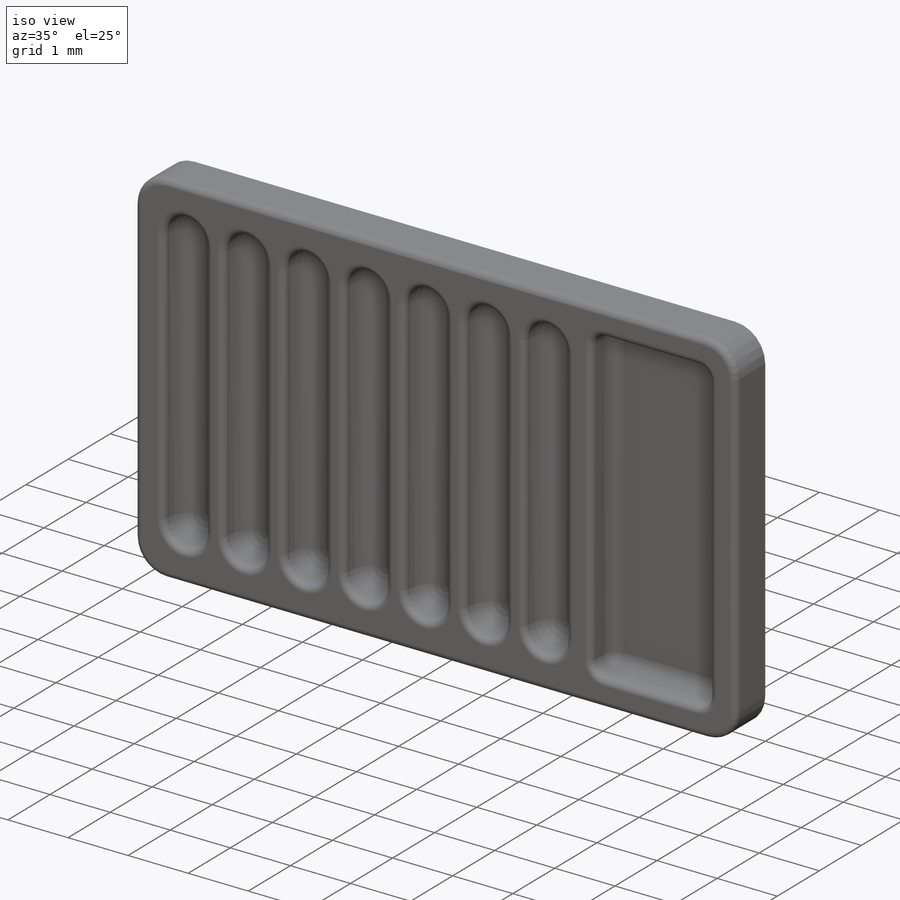
[diagram: iso view]
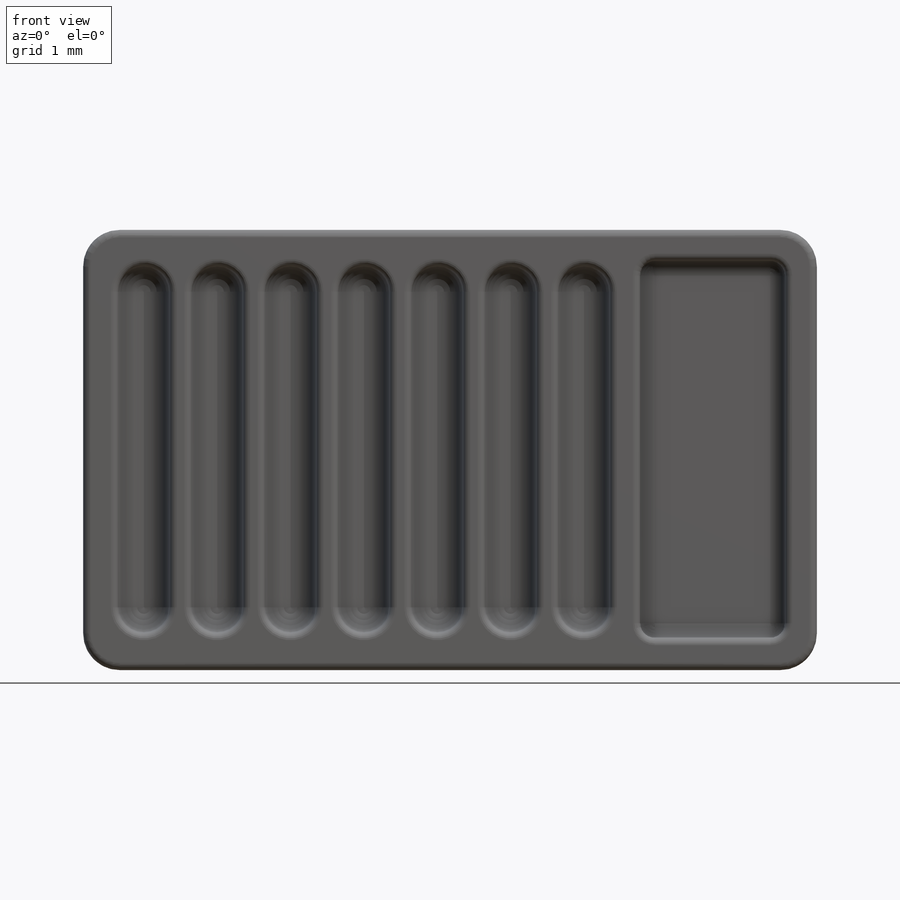
[diagram: front view]
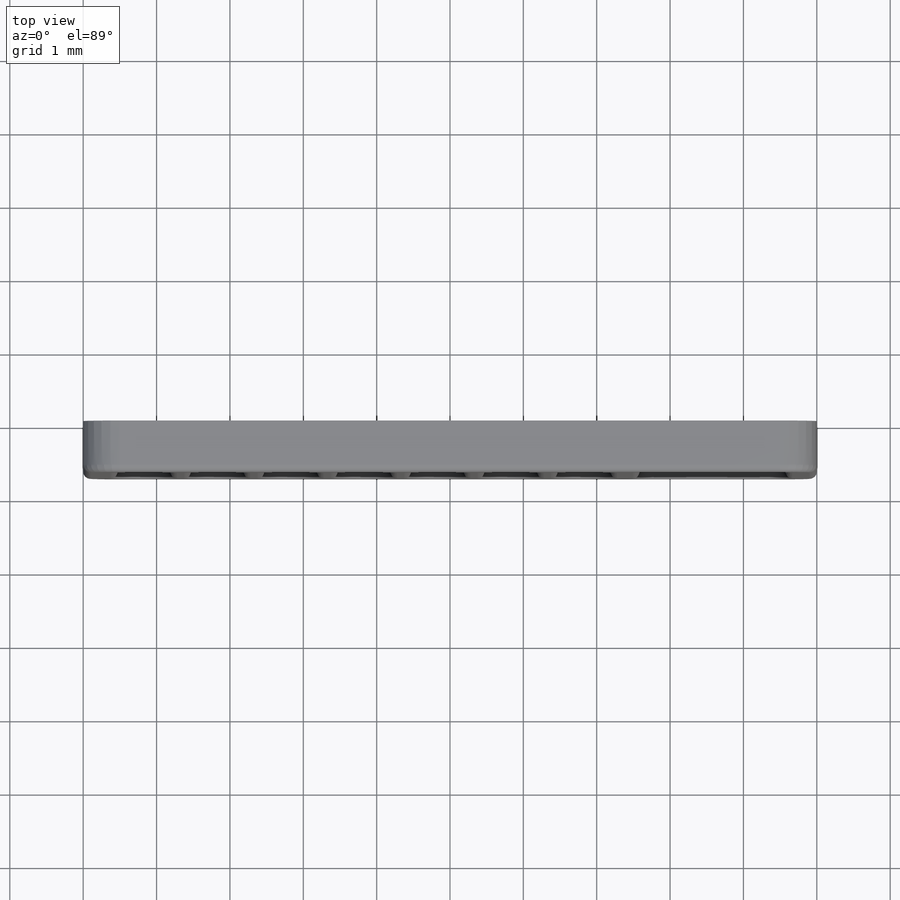
[diagram: top view]
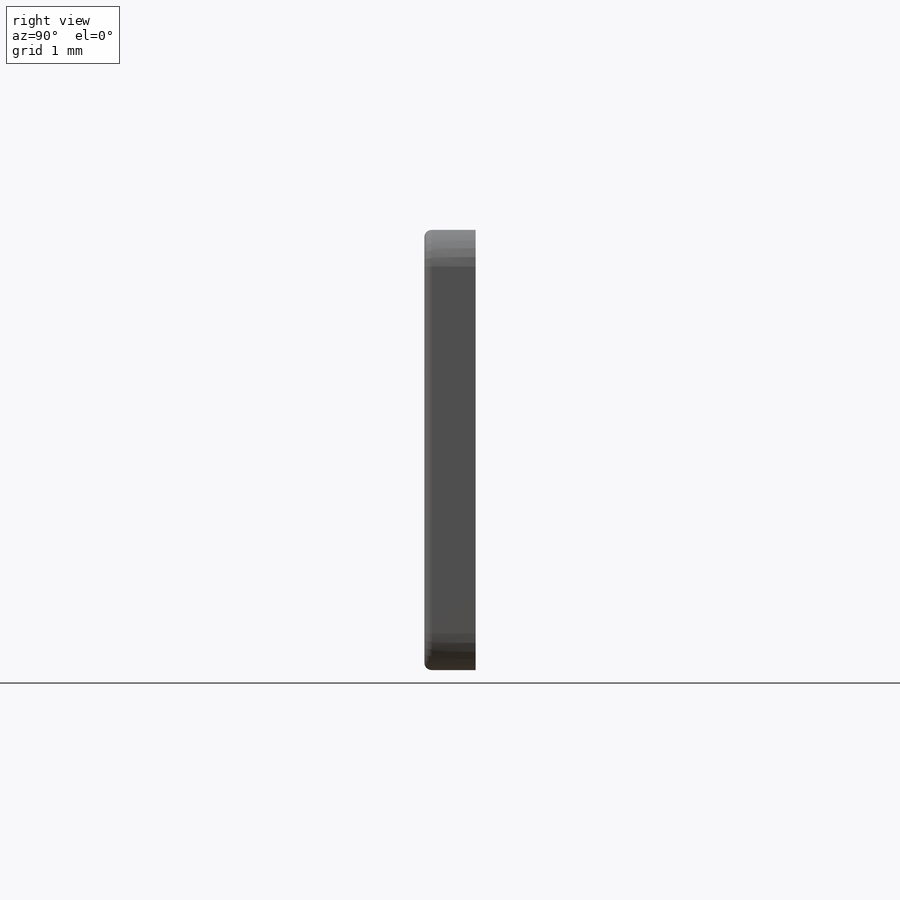
[diagram: right view]
SOLIDWORKS PART (.sldprt)
format: sldprt  version: not decoded by parser v0  size: 439,296 bytes
history: native  units: mm
features: fillet x7, sketch x3, cut_extrude x2, material x1, extrude x1, pattern_linear x1 (+13 scaffold rows collapsed)
feature tree (28):
  scaffold x13  (default folders/planes/origin — collapsed)
  material  "Material <not specified>"
  sketch  "Sketch1"  dims[D1=10.0mm D2=6.0mm]
  extrude  "Boss-Extrude1"  Depth=0.7mm
  sketch  "Sketch2"  dims[D1=0.7mm D2=4.3mm]
  cut_extrude  "Cut-Extrude1"  Depth=0.5mm
  fillet  "Fillet4"  Radius=0.35mm
  fillet  "Fillet5"  Radius=0.1mm
  pattern_linear  "LPattern4"  Count1=7 Count2=1 Spacing1=1mm Spacing2=10mm
  fillet  "Fillet6"  Radius=0.5mm
  fillet  "Fillet7"  Radius=0.1mm
  sketch  "Sketch3"
  cut_extrude  "Cut-Extrude2"  Depth=0.5mm
  fillet  "Fillet8"  Radius=0.2mm
  fillet  "Fillet9"  Radius=0.2mm
  fillet  "Fillet10"  Radius=0.1mm
decode coverage: 13 of 14 modeling features carry decoded parameters
note: suppression state not decoded; provenance and decode notes live in map.json
